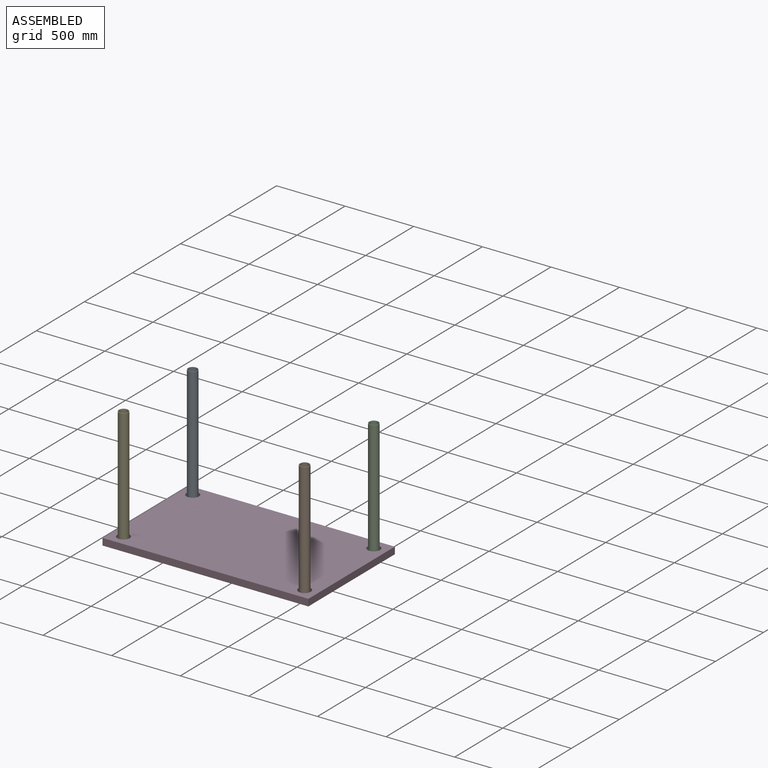
[diagram: assembled view]
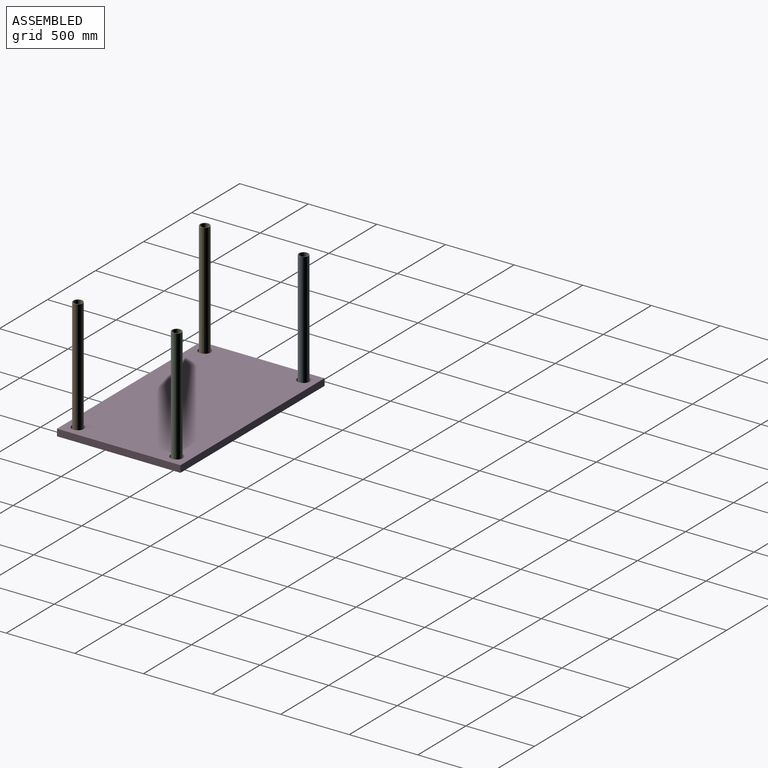
[diagram: assembled view, second angle]
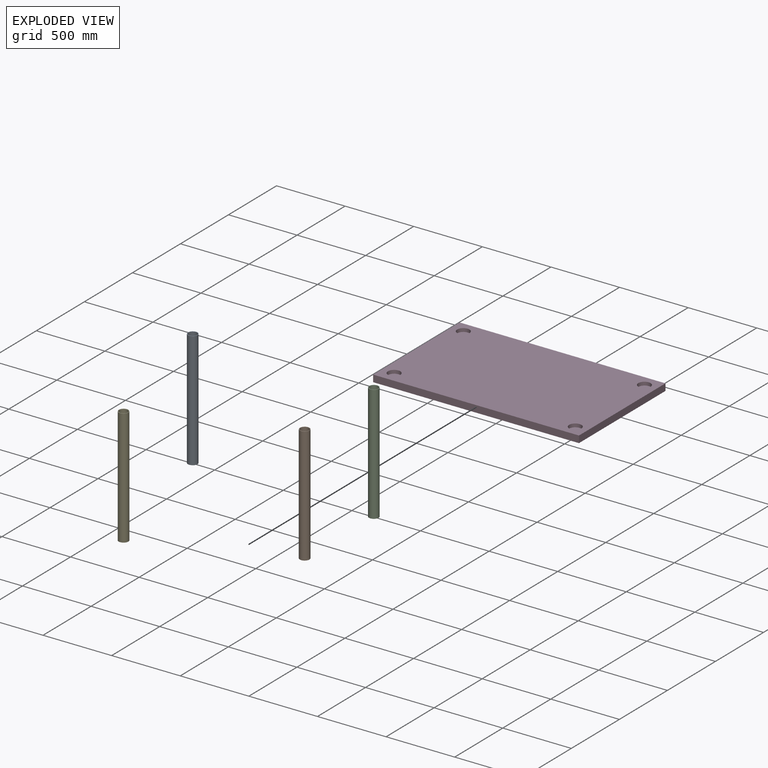
[diagram: exploded view]
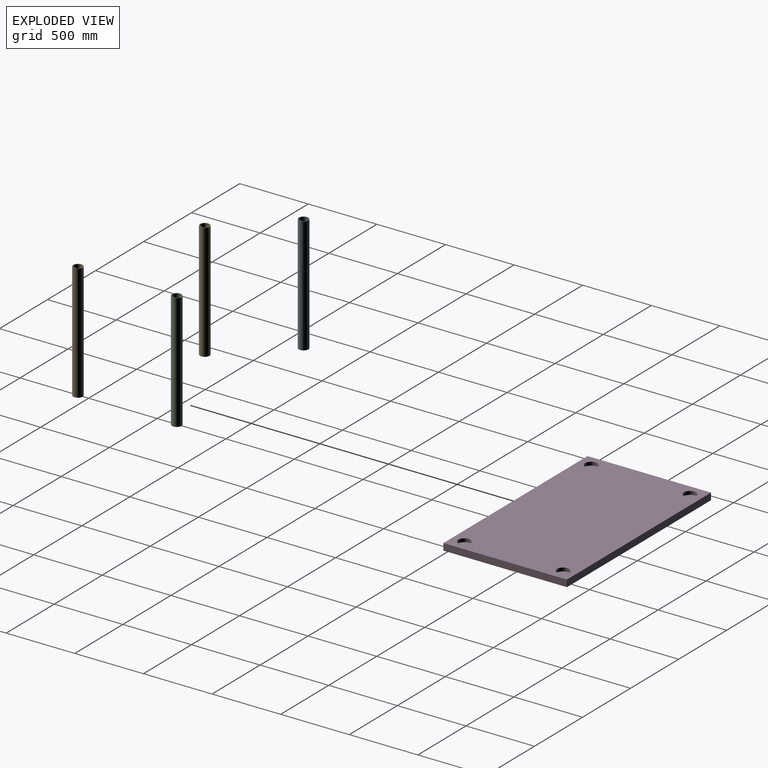
[diagram: exploded view, second angle]
ASSEMBLY  parts=5 mates=4
PART A: 4 faces, bbox 70x70x850 mm
  f0: plane 70x70mm, normal (0,0,1), area 829.4mm2, adj f1,f3
  f1: cylinder r=31mm len=850mm, axis (0,0,-1), area 165561.9mm2, adj f0,f2
  f2: plane 70x70mm, normal (0,0,-1), area 829.4mm2, adj f1,f3
  f3: cylinder r=35mm len=850mm, axis (0,0,-1), area 186924.8mm2, adj f0,f2
PART B: same geometry as A
PART C: same geometry as A
PART D: 14 faces, bbox 1500x900x50 mm
  f0: plane 1500x50mm, normal (0,1,0), area 75000mm2, adj f1,f3,f4,f5
  f1: plane 900x50mm, normal (-1,0,0), area 45000mm2, adj f0,f2,f4,f5
  f2: plane 1500x50mm, normal (0,-1,0), area 75000mm2, adj f1,f3,f4,f5
  f3: plane 900x50mm, normal (1,0,0), area 45000mm2, adj f0,f2,f4,f5
  f4: plane 1500x900mm, normal (0,0,1), area 1324553.1mm2, adj f0,f1,f2,f3,f6,f8,f10,f12
  f5: plane 1500x900mm, normal (0,0,-1), area 1350000mm2, adj f0,f1,f2,f3
  f6: cylinder r=45mm len=90mm, axis (0,0,1), area 7068.6mm2, adj f4,f7
  f7: plane 90x90mm, normal (0,0,1), area 6361.7mm2, adj f6
  f8: cylinder r=45mm len=90mm, axis (0,0,1), area 7068.6mm2, adj f4,f9
  f9: plane 90x90mm, normal (0,0,1), area 6361.7mm2, adj f8
  f10: cylinder r=45mm len=90mm, axis (0,0,1), area 7068.6mm2, adj f4,f11
  f11: plane 90x90mm, normal (0,0,1), area 6361.7mm2, adj f10
  f12: cylinder r=45mm len=90mm, axis (0,0,1), area 7068.6mm2, adj f4,f13
  f13: plane 90x90mm, normal (0,0,1), area 6361.7mm2, adj f12
PART E: same geometry as A
PLACE A rot(axis=(-1,0,0),180deg) t=(1190.54,0,850)mm
PLACE B rot(axis=(-0.71,0.71,0),180deg) t=(2510.54,-720,850)mm
PLACE C t=(2510.54,0,0)mm
PLACE D t=(1100.54,-810,-25)mm
PLACE E t=(1190.54,-720,0)mm
MATE fastened D.f6 <-> C.f1  axis (0,0,1) through (2510.54,0,0)mm
MATE fastened D.f8 <-> A.f1  axis (0,0,1) through (1190.54,0,0)mm
MATE fastened D.f12 <-> B.f1  axis (0,0,1) through (2510.54,-720,0)mm
MATE fastened D.f10 <-> E.f1  axis (0,0,1) through (1190.54,-720,0)mm
